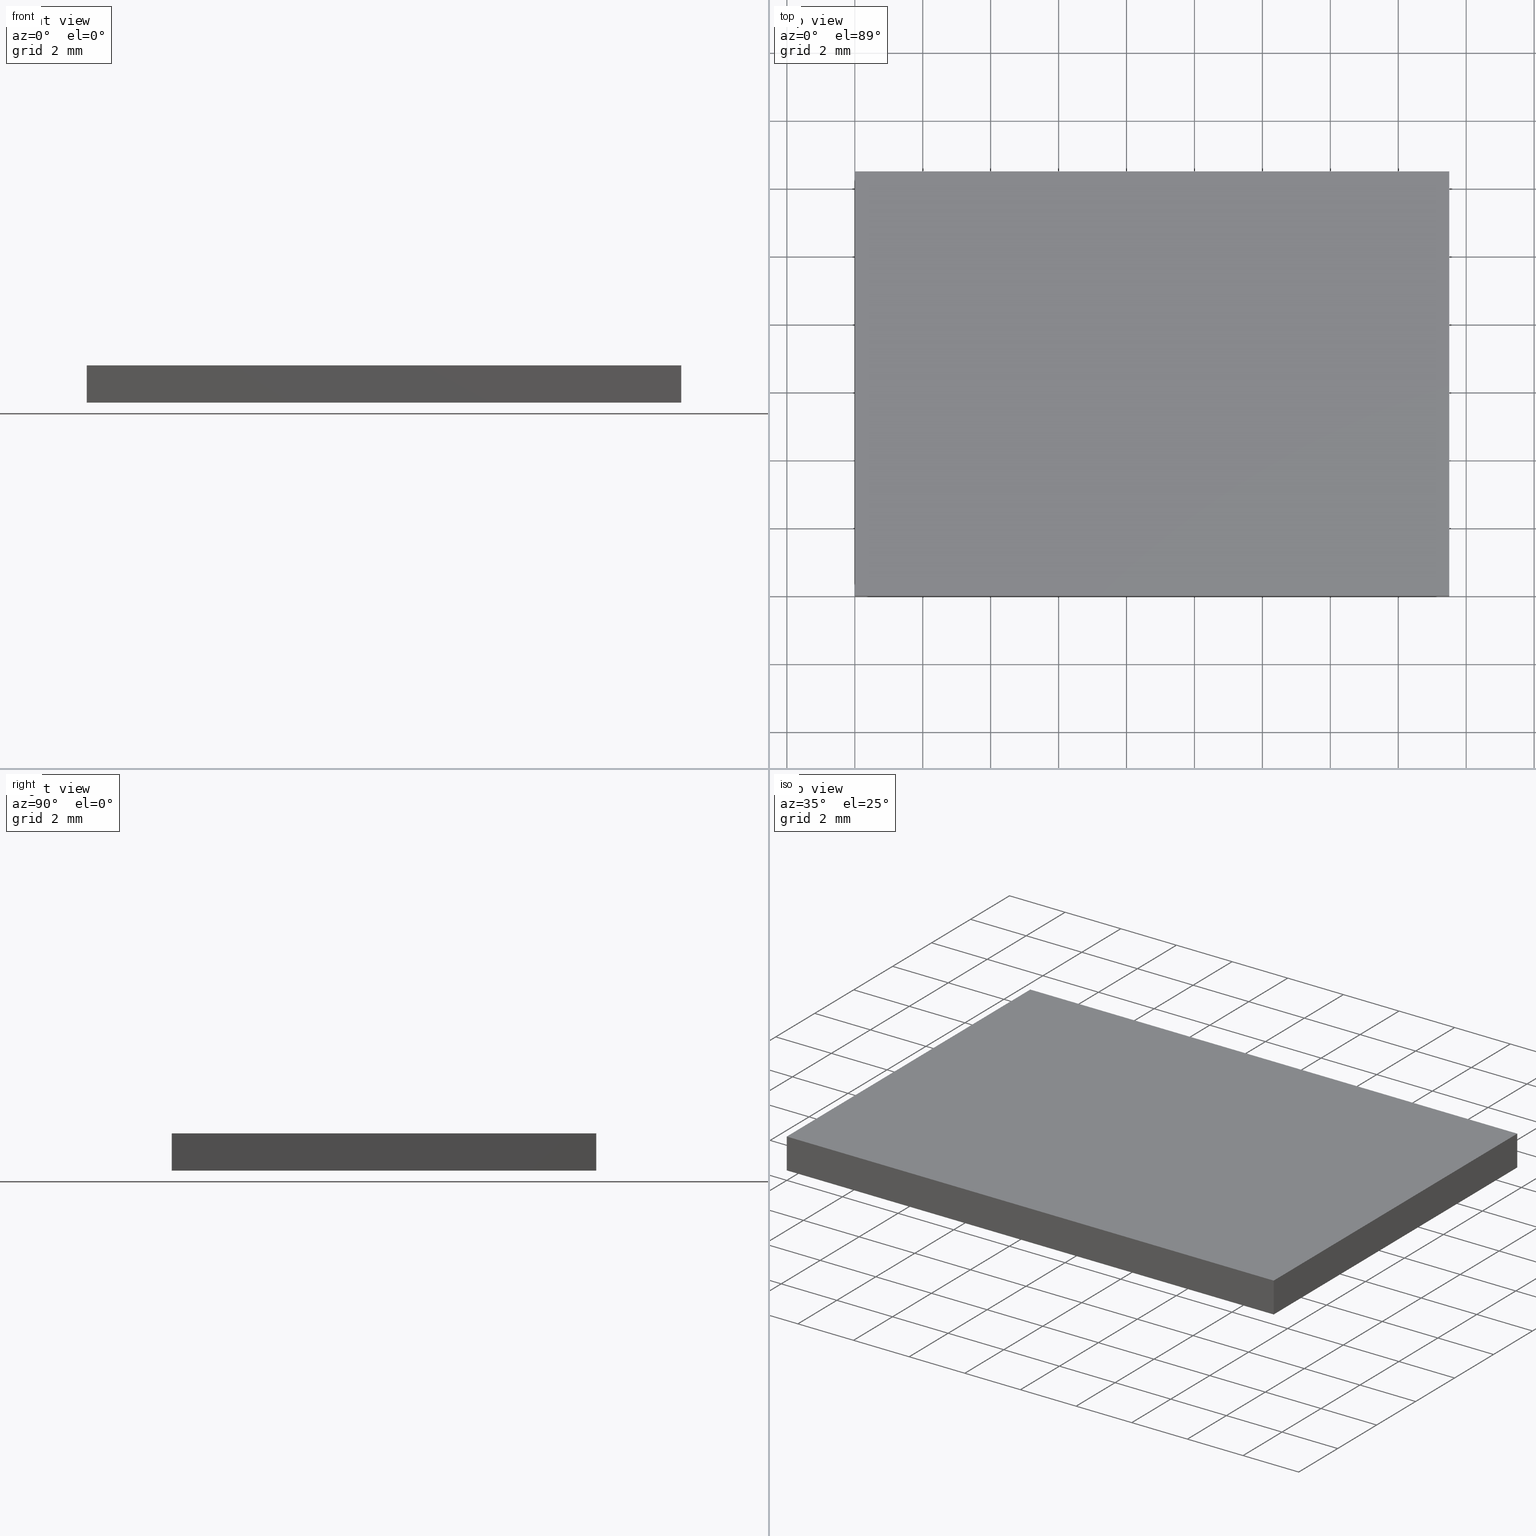
[diagram: canonical four-view strip — front | top / right | iso, engineering-drawing reading convention]
A machine part, canonical four-view strip (front | top / right | iso — engineering-drawing reading convention). The complete STEP part file that produces these views, byte-faithful:
ISO-10303-21;
HEADER;
FILE_DESCRIPTION (( 'STEP AP214' ),
    '1' );
FILE_NAME ('GDMLPH-590-12x17.STEP',
    '2024-08-13T06:09:29',
    ( 'Windows User' ),
    ( 'P R C' ),
    'SwSTEP 2.0',
    'SolidWorks 2022',
    '' );
FILE_SCHEMA (( 'AUTOMOTIVE_DESIGN' ));
ENDSEC;

DATA;
#1 = DIRECTION ( 'NONE',  ( -0.000000000000000000, -1.000000000000000000, -0.000000000000000000 ) ) ;
#2 = LINE ( 'NONE', #178, #188 ) ;
#3 = VERTEX_POINT ( 'NONE', #122 ) ;
#4 = FACE_OUTER_BOUND ( 'NONE', #21, .T. ) ;
#5 = CARTESIAN_POINT ( 'NONE',  ( 0.000000000000000000, 12.50000000000000000, 1.100000000000000089 ) ) ;
#6 = ORIENTED_EDGE ( 'NONE', *, *, #106, .F. ) ;
#7 = LINE ( 'NONE', #104, #28 ) ;
#8 = EDGE_LOOP ( 'NONE', ( #86, #22, #103, #179 ) ) ;
#9 = EDGE_CURVE ( 'NONE', #151, #147, #141, .T. ) ;
#10 = ORIENTED_EDGE ( 'NONE', *, *, #14, .T. ) ;
#11 = CLOSED_SHELL ( 'NONE', ( #54, #84, #91, #198, #130, #63 ) ) ;
#12 = CARTESIAN_POINT ( 'NONE',  ( 17.50000000000000000, 0.000000000000000000, 1.100000000000000089 ) ) ;
#13 = CARTESIAN_POINT ( 'NONE',  ( 0.000000000000000000, 0.000000000000000000, 1.100000000000000089 ) ) ;
#14 = EDGE_CURVE ( 'NONE', #77, #133, #7, .T. ) ;
#15 = EDGE_CURVE ( 'NONE', #142, #144, #25, .T. ) ;
#16 = VECTOR ( 'NONE', #139, 1000.000000000000000 ) ;
#17 = UNCERTAINTY_MEASURE_WITH_UNIT (LENGTH_MEASURE( 1.000000000000000082E-05 ), #43, 'distance_accuracy_value', 'NONE');
#18 = AXIS2_PLACEMENT_3D ( 'NONE', #5, #56, #69 ) ;
#19 =( LENGTH_UNIT ( ) NAMED_UNIT ( * ) SI_UNIT ( .MILLI., .METRE. ) );
#20 = DIRECTION ( 'NONE',  ( 0.000000000000000000, 0.000000000000000000, -1.000000000000000000 ) ) ;
#21 = EDGE_LOOP ( 'NONE', ( #10, #39, #117, #161 ) ) ;
#22 = ORIENTED_EDGE ( 'NONE', *, *, #15, .F. ) ;
#23 = DIRECTION ( 'NONE',  ( -1.000000000000000000, 0.000000000000000000, -0.000000000000000000 ) ) ;
#24 = ORIENTED_EDGE ( 'NONE', *, *, #14, .F. ) ;
#25 = LINE ( 'NONE', #119, #202 ) ;
#26 = EDGE_CURVE ( 'NONE', #133, #3, #82, .T. ) ;
#27 = ORIENTED_EDGE ( 'NONE', *, *, #96, .F. ) ;
#28 = VECTOR ( 'NONE', #136, 1000.000000000000000 ) ;
#29 = VECTOR ( 'NONE', #132, 1000.000000000000000 ) ;
#30 = SURFACE_STYLE_USAGE ( .BOTH. , #153 ) ;
#31 = FILL_AREA_STYLE ('',( #127 ) ) ;
#32 = PRESENTATION_STYLE_ASSIGNMENT (( #49 ) ) ;
#33 = APPLICATION_CONTEXT ( 'automotive_design' ) ;
#34 = UNCERTAINTY_MEASURE_WITH_UNIT (LENGTH_MEASURE( 1.000000000000000082E-05 ), #19, 'distance_accuracy_value', 'NONE');
#35 = STYLED_ITEM ( 'NONE', ( #93 ), #110 ) ;
#36 = MECHANICAL_DESIGN_GEOMETRIC_PRESENTATION_REPRESENTATION (  '', ( #35 ), #114 ) ;
#37 = DIRECTION ( 'NONE',  ( 0.000000000000000000, 1.000000000000000000, 0.000000000000000000 ) ) ;
#38 = PLANE ( 'NONE',  #168 ) ;
#39 = ORIENTED_EDGE ( 'NONE', *, *, #26, .T. ) ;
#40 = FACE_OUTER_BOUND ( 'NONE', #183, .T. ) ;
#41 = EDGE_LOOP ( 'NONE', ( #167, #185, #57, #121 ) ) ;
#42 = PLANE ( 'NONE',  #108 ) ;
#43 =( LENGTH_UNIT ( ) NAMED_UNIT ( * ) SI_UNIT ( .MILLI., .METRE. ) );
#44 = ORIENTED_EDGE ( 'NONE', *, *, #48, .F. ) ;
#45 = FILL_AREA_STYLE ('',( #149 ) ) ;
#46 = SURFACE_STYLE_FILL_AREA ( #45 ) ;
#47 = CARTESIAN_POINT ( 'NONE',  ( 0.000000000000000000, 0.000000000000000000, 1.100000000000000089 ) ) ;
#48 = EDGE_CURVE ( 'NONE', #147, #164, #67, .T. ) ;
#49 = SURFACE_STYLE_USAGE ( .BOTH. , #190 ) ;
#50 = CARTESIAN_POINT ( 'NONE',  ( 0.000000000000000000, 0.000000000000000000, 0.000000000000000000 ) ) ;
#51 =( LENGTH_UNIT ( ) NAMED_UNIT ( * ) SI_UNIT ( .MILLI., .METRE. ) );
#52 = CARTESIAN_POINT ( 'NONE',  ( 17.50000000000000000, 0.000000000000000000, 0.000000000000000000 ) ) ;
#53 = ORIENTED_EDGE ( 'NONE', *, *, #160, .T. ) ;
#54 = ADVANCED_FACE ( 'NONE', ( #40 ), #101, .F. ) ;
#55 =( NAMED_UNIT ( * ) PLANE_ANGLE_UNIT ( ) SI_UNIT ( $, .RADIAN. ) );
#56 = DIRECTION ( 'NONE',  ( 0.000000000000000000, -1.000000000000000000, 0.000000000000000000 ) ) ;
#57 = ORIENTED_EDGE ( 'NONE', *, *, #26, .F. ) ;
#58 = DIRECTION ( 'NONE',  ( 0.000000000000000000, 0.000000000000000000, -1.000000000000000000 ) ) ;
#59 =( GEOMETRIC_REPRESENTATION_CONTEXT ( 3 ) GLOBAL_UNCERTAINTY_ASSIGNED_CONTEXT ( ( #66 ) ) GLOBAL_UNIT_ASSIGNED_CONTEXT ( ( #51, #55, #146 ) ) REPRESENTATION_CONTEXT ( 'NONE', 'WORKASPACE' ) );
#60 = CARTESIAN_POINT ( 'NONE',  ( 0.000000000000000000, 0.000000000000000000, 0.000000000000000000 ) ) ;
#61 = PRESENTATION_LAYER_ASSIGNMENT (  '', '', ( #158 ) ) ;
#62 = PLANE ( 'NONE',  #180 ) ;
#63 = ADVANCED_FACE ( 'NONE', ( #74 ), #42, .T. ) ;
#64 = DIRECTION ( 'NONE',  ( -1.000000000000000000, 0.000000000000000000, 0.000000000000000000 ) ) ;
#65 = AXIS2_PLACEMENT_3D ( 'NONE', #12, #64, #126 ) ;
#66 = UNCERTAINTY_MEASURE_WITH_UNIT (LENGTH_MEASURE( 1.000000000000000082E-05 ), #51, 'distance_accuracy_value', 'NONE');
#67 = LINE ( 'NONE', #131, #81 ) ;
#68 = DIRECTION ( 'NONE',  ( -0.000000000000000000, -0.000000000000000000, -1.000000000000000000 ) ) ;
#69 = DIRECTION ( 'NONE',  ( 0.000000000000000000, -0.000000000000000000, -1.000000000000000000 ) ) ;
#70 = ORIENTED_EDGE ( 'NONE', *, *, #9, .F. ) ;
#71 = CARTESIAN_POINT ( 'NONE',  ( 0.000000000000000000, 0.000000000000000000, 1.100000000000000089 ) ) ;
#72 = LINE ( 'NONE', #116, #109 ) ;
#73 = ORIENTED_EDGE ( 'NONE', *, *, #175, .F. ) ;
#74 = FACE_OUTER_BOUND ( 'NONE', #192, .T. ) ;
#75 = PRODUCT_DEFINITION_FORMATION_WITH_SPECIFIED_SOURCE ( '�κ�', '', #155, .NOT_KNOWN. ) ;
#76 = EDGE_LOOP ( 'NONE', ( #53, #195, #6, #135 ) ) ;
#77 = VERTEX_POINT ( 'NONE', #112 ) ;
#78 = LINE ( 'NONE', #169, #16 ) ;
#79 = DIRECTION ( 'NONE',  ( -0.000000000000000000, -0.000000000000000000, -1.000000000000000000 ) ) ;
#80 = PRODUCT_DEFINITION_SHAPE ( 'NONE', 'NONE',  #176 ) ;
#81 = VECTOR ( 'NONE', #191, 1000.000000000000000 ) ;
#82 = LINE ( 'NONE', #165, #152 ) ;
#83 =( NAMED_UNIT ( * ) PLANE_ANGLE_UNIT ( ) SI_UNIT ( $, .RADIAN. ) );
#84 = ADVANCED_FACE ( 'NONE', ( #138 ), #62, .F. ) ;
#85 =( NAMED_UNIT ( * ) SI_UNIT ( $, .STERADIAN. ) SOLID_ANGLE_UNIT ( ) );
#86 = ORIENTED_EDGE ( 'NONE', *, *, #175, .T. ) ;
#87 = DIRECTION ( 'NONE',  ( 1.000000000000000000, 0.000000000000000000, 0.000000000000000000 ) ) ;
#88 = ORIENTED_EDGE ( 'NONE', *, *, #157, .T. ) ;
#89 = ORIENTED_EDGE ( 'NONE', *, *, #160, .F. ) ;
#90 = VECTOR ( 'NONE', #68, 1000.000000000000000 ) ;
#91 = ADVANCED_FACE ( 'NONE', ( #200 ), #156, .F. ) ;
#92 = COLOUR_RGB ( '',1.000000000000000000, 1.000000000000000000, 1.000000000000000000 ) ;
#93 = PRESENTATION_STYLE_ASSIGNMENT (( #30 ) ) ;
#94 = SURFACE_STYLE_FILL_AREA ( #31 ) ;
#95 = COLOUR_RGB ( '',1.000000000000000000, 1.000000000000000000, 1.000000000000000000 ) ;
#96 = EDGE_CURVE ( 'NONE', #133, #147, #189, .T. ) ;
#97 = FACE_OUTER_BOUND ( 'NONE', #76, .T. ) ;
#98 = CARTESIAN_POINT ( 'NONE',  ( 17.50000000000000000, 0.000000000000000000, 1.100000000000000089 ) ) ;
#99 = DIRECTION ( 'NONE',  ( -1.000000000000000000, -0.000000000000000000, -0.000000000000000000 ) ) ;
#100 = ORIENTED_EDGE ( 'NONE', *, *, #9, .T. ) ;
#101 = PLANE ( 'NONE',  #196 ) ;
#102 = LINE ( 'NONE', #177, #29 ) ;
#103 = ORIENTED_EDGE ( 'NONE', *, *, #129, .F. ) ;
#104 = CARTESIAN_POINT ( 'NONE',  ( 0.000000000000000000, 0.000000000000000000, 1.100000000000000089 ) ) ;
#105 =( NAMED_UNIT ( * ) PLANE_ANGLE_UNIT ( ) SI_UNIT ( $, .RADIAN. ) );
#106 = EDGE_CURVE ( 'NONE', #142, #77, #78, .T. ) ;
#107 = MANIFOLD_SOLID_BREP ( '͹̨-����1', #11 ) ;
#108 = AXIS2_PLACEMENT_3D ( 'NONE', #197, #58, #154 ) ;
#109 = VECTOR ( 'NONE', #99, 1000.000000000000000 ) ;
#110 = ADVANCED_BREP_SHAPE_REPRESENTATION ( 'GDMLPH-590-12x17', ( #107, #150 ), #137 ) ;
#111 = CARTESIAN_POINT ( 'NONE',  ( 0.000000000000000000, 12.50000000000000000, 1.100000000000000089 ) ) ;
#112 = CARTESIAN_POINT ( 'NONE',  ( 0.000000000000000000, 12.50000000000000000, 1.100000000000000089 ) ) ;
#113 = DIRECTION ( 'NONE',  ( -0.000000000000000000, -0.000000000000000000, -1.000000000000000000 ) ) ;
#114 =( GEOMETRIC_REPRESENTATION_CONTEXT ( 3 ) GLOBAL_UNCERTAINTY_ASSIGNED_CONTEXT ( ( #17 ) ) GLOBAL_UNIT_ASSIGNED_CONTEXT ( ( #43, #105, #166 ) ) REPRESENTATION_CONTEXT ( 'NONE', 'WORKASPACE' ) );
#115 = LINE ( 'NONE', #98, #90 ) ;
#116 = CARTESIAN_POINT ( 'NONE',  ( 0.000000000000000000, 12.50000000000000000, 0.000000000000000000 ) ) ;
#117 = ORIENTED_EDGE ( 'NONE', *, *, #129, .T. ) ;
#118 = VECTOR ( 'NONE', #79, 1000.000000000000000 ) ;
#119 = CARTESIAN_POINT ( 'NONE',  ( 17.50000000000000000, 12.50000000000000000, 1.100000000000000089 ) ) ;
#120 = APPLICATION_PROTOCOL_DEFINITION ( 'draft international standard', 'automotive_design', 1998, #33 ) ;
#121 = ORIENTED_EDGE ( 'NONE', *, *, #96, .T. ) ;
#122 = CARTESIAN_POINT ( 'NONE',  ( 17.50000000000000000, 0.000000000000000000, 1.100000000000000089 ) ) ;
#123 = EDGE_CURVE ( 'NONE', #3, #164, #115, .T. ) ;
#124 = DIRECTION ( 'NONE',  ( 0.000000000000000000, 0.000000000000000000, 1.000000000000000000 ) ) ;
#125 = MECHANICAL_DESIGN_GEOMETRIC_PRESENTATION_REPRESENTATION (  '', ( #158 ), #59 ) ;
#126 = DIRECTION ( 'NONE',  ( 0.000000000000000000, 0.000000000000000000, 1.000000000000000000 ) ) ;
#127 = FILL_AREA_STYLE_COLOUR ( '', #92 ) ;
#128 = VECTOR ( 'NONE', #1, 1000.000000000000000 ) ;
#129 = EDGE_CURVE ( 'NONE', #3, #142, #102, .T. ) ;
#130 = ADVANCED_FACE ( 'NONE', ( #4 ), #38, .F. ) ;
#131 = CARTESIAN_POINT ( 'NONE',  ( 0.000000000000000000, 0.000000000000000000, 0.000000000000000000 ) ) ;
#132 = DIRECTION ( 'NONE',  ( 0.000000000000000000, 1.000000000000000000, 0.000000000000000000 ) ) ;
#133 = VERTEX_POINT ( 'NONE', #71 ) ;
#134 = CARTESIAN_POINT ( 'NONE',  ( 0.000000000000000000, 0.000000000000000000, 0.000000000000000000 ) ) ;
#135 = ORIENTED_EDGE ( 'NONE', *, *, #15, .T. ) ;
#136 = DIRECTION ( 'NONE',  ( -0.000000000000000000, -1.000000000000000000, -0.000000000000000000 ) ) ;
#137 =( GEOMETRIC_REPRESENTATION_CONTEXT ( 3 ) GLOBAL_UNCERTAINTY_ASSIGNED_CONTEXT ( ( #34 ) ) GLOBAL_UNIT_ASSIGNED_CONTEXT ( ( #19, #83, #85 ) ) REPRESENTATION_CONTEXT ( 'NONE', 'WORKASPACE' ) );
#138 = FACE_OUTER_BOUND ( 'NONE', #41, .T. ) ;
#139 = DIRECTION ( 'NONE',  ( -1.000000000000000000, -0.000000000000000000, -0.000000000000000000 ) ) ;
#140 = PRODUCT_DEFINITION_CONTEXT ( 'detailed design', #172, 'design' ) ;
#141 = LINE ( 'NONE', #50, #128 ) ;
#142 = VERTEX_POINT ( 'NONE', #163 ) ;
#143 = CARTESIAN_POINT ( 'NONE',  ( 17.50000000000000000, 12.50000000000000000, 0.000000000000000000 ) ) ;
#144 = VERTEX_POINT ( 'NONE', #143 ) ;
#145 = DIRECTION ( 'NONE',  ( 0.000000000000000000, 0.000000000000000000, -1.000000000000000000 ) ) ;
#146 =( NAMED_UNIT ( * ) SI_UNIT ( $, .STERADIAN. ) SOLID_ANGLE_UNIT ( ) );
#147 = VERTEX_POINT ( 'NONE', #134 ) ;
#148 = PRESENTATION_LAYER_ASSIGNMENT (  '', '', ( #35 ) ) ;
#149 = FILL_AREA_STYLE_COLOUR ( '', #95 ) ;
#150 = AXIS2_PLACEMENT_3D ( 'NONE', #60, #124, #187 ) ;
#151 = VERTEX_POINT ( 'NONE', #193 ) ;
#152 = VECTOR ( 'NONE', #162, 1000.000000000000000 ) ;
#153 = SURFACE_SIDE_STYLE ('',( #46 ) ) ;
#154 = DIRECTION ( 'NONE',  ( -1.000000000000000000, 0.000000000000000000, -0.000000000000000000 ) ) ;
#155 = PRODUCT ( 'GDMLPH-590-12x17', 'GDMLPH-590-12x17', '', ( #174 ) ) ;
#156 = PLANE ( 'NONE',  #65 ) ;
#157 = EDGE_CURVE ( 'NONE', #77, #151, #182, .T. ) ;
#158 = STYLED_ITEM ( 'NONE', ( #32 ), #107 ) ;
#159 = CARTESIAN_POINT ( 'NONE',  ( 0.000000000000000000, 0.000000000000000000, 1.100000000000000089 ) ) ;
#160 = EDGE_CURVE ( 'NONE', #144, #151, #72, .T. ) ;
#161 = ORIENTED_EDGE ( 'NONE', *, *, #106, .T. ) ;
#162 = DIRECTION ( 'NONE',  ( 1.000000000000000000, 0.000000000000000000, 0.000000000000000000 ) ) ;
#163 = CARTESIAN_POINT ( 'NONE',  ( 17.50000000000000000, 12.50000000000000000, 1.100000000000000089 ) ) ;
#164 = VERTEX_POINT ( 'NONE', #52 ) ;
#165 = CARTESIAN_POINT ( 'NONE',  ( 0.000000000000000000, 0.000000000000000000, 1.100000000000000089 ) ) ;
#166 =( NAMED_UNIT ( * ) SI_UNIT ( $, .STERADIAN. ) SOLID_ANGLE_UNIT ( ) );
#167 = ORIENTED_EDGE ( 'NONE', *, *, #48, .T. ) ;
#168 = AXIS2_PLACEMENT_3D ( 'NONE', #159, #20, #23 ) ;
#169 = CARTESIAN_POINT ( 'NONE',  ( 0.000000000000000000, 12.50000000000000000, 1.100000000000000089 ) ) ;
#170 = SHAPE_DEFINITION_REPRESENTATION ( #80, #110 ) ;
#171 = DIRECTION ( 'NONE',  ( 0.000000000000000000, -0.000000000000000000, 1.000000000000000000 ) ) ;
#172 = APPLICATION_CONTEXT ( 'automotive_design' ) ;
#173 = VECTOR ( 'NONE', #113, 1000.000000000000000 ) ;
#174 = PRODUCT_CONTEXT ( 'NONE', #33, 'mechanical' ) ;
#175 = EDGE_CURVE ( 'NONE', #164, #144, #2, .T. ) ;
#176 = PRODUCT_DEFINITION ( 'δ֪', '', #75, #140 ) ;
#177 = CARTESIAN_POINT ( 'NONE',  ( 17.50000000000000000, 0.000000000000000000, 1.100000000000000089 ) ) ;
#178 = CARTESIAN_POINT ( 'NONE',  ( 17.50000000000000000, 0.000000000000000000, 0.000000000000000000 ) ) ;
#179 = ORIENTED_EDGE ( 'NONE', *, *, #123, .T. ) ;
#180 = AXIS2_PLACEMENT_3D ( 'NONE', #13, #201, #171 ) ;
#181 = CARTESIAN_POINT ( 'NONE',  ( 0.000000000000000000, 0.000000000000000000, 1.100000000000000089 ) ) ;
#182 = LINE ( 'NONE', #111, #173 ) ;
#183 = EDGE_LOOP ( 'NONE', ( #100, #27, #24, #88 ) ) ;
#184 = DIRECTION ( 'NONE',  ( -0.000000000000000000, -0.000000000000000000, -1.000000000000000000 ) ) ;
#185 = ORIENTED_EDGE ( 'NONE', *, *, #123, .F. ) ;
#186 = PRODUCT_RELATED_PRODUCT_CATEGORY ( 'part', '', ( #155 ) ) ;
#187 = DIRECTION ( 'NONE',  ( 1.000000000000000000, 0.000000000000000000, 0.000000000000000000 ) ) ;
#188 = VECTOR ( 'NONE', #37, 1000.000000000000000 ) ;
#189 = LINE ( 'NONE', #47, #118 ) ;
#190 = SURFACE_SIDE_STYLE ('',( #94 ) ) ;
#191 = DIRECTION ( 'NONE',  ( 1.000000000000000000, 0.000000000000000000, 0.000000000000000000 ) ) ;
#192 = EDGE_LOOP ( 'NONE', ( #70, #89, #73, #44 ) ) ;
#193 = CARTESIAN_POINT ( 'NONE',  ( 0.000000000000000000, 12.50000000000000000, 0.000000000000000000 ) ) ;
#194 = PLANE ( 'NONE',  #18 ) ;
#195 = ORIENTED_EDGE ( 'NONE', *, *, #157, .F. ) ;
#196 = AXIS2_PLACEMENT_3D ( 'NONE', #181, #87, #145 ) ;
#197 = CARTESIAN_POINT ( 'NONE',  ( 0.000000000000000000, 0.000000000000000000, 0.000000000000000000 ) ) ;
#198 = ADVANCED_FACE ( 'NONE', ( #97 ), #194, .F. ) ;
#199 = APPLICATION_PROTOCOL_DEFINITION ( 'draft international standard', 'automotive_design', 1998, #172 ) ;
#200 = FACE_OUTER_BOUND ( 'NONE', #8, .T. ) ;
#201 = DIRECTION ( 'NONE',  ( 0.000000000000000000, 1.000000000000000000, 0.000000000000000000 ) ) ;
#202 = VECTOR ( 'NONE', #184, 1000.000000000000000 ) ;
ENDSEC;
END-ISO-10303-21;
